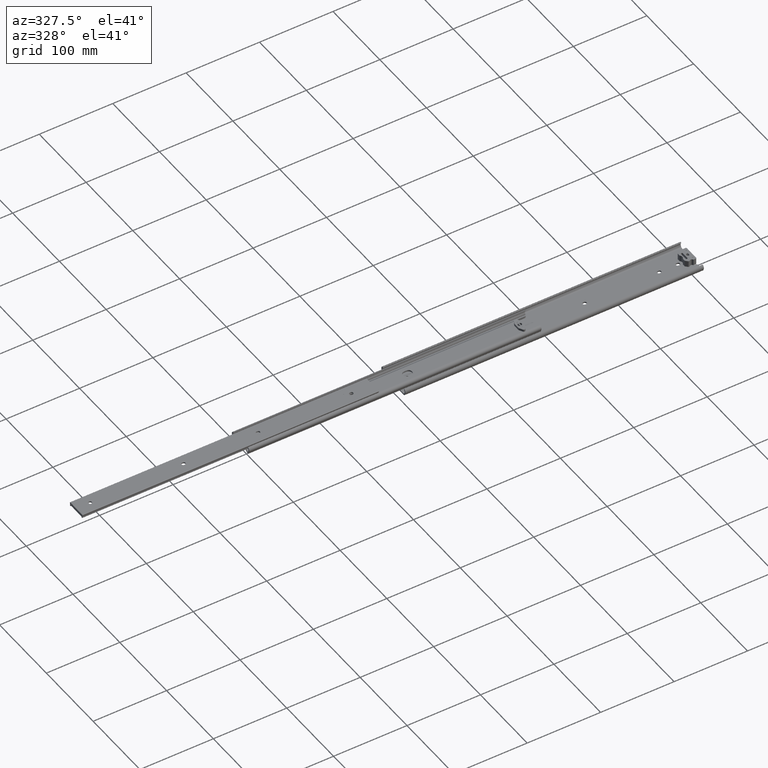
[diagram: clean part render]
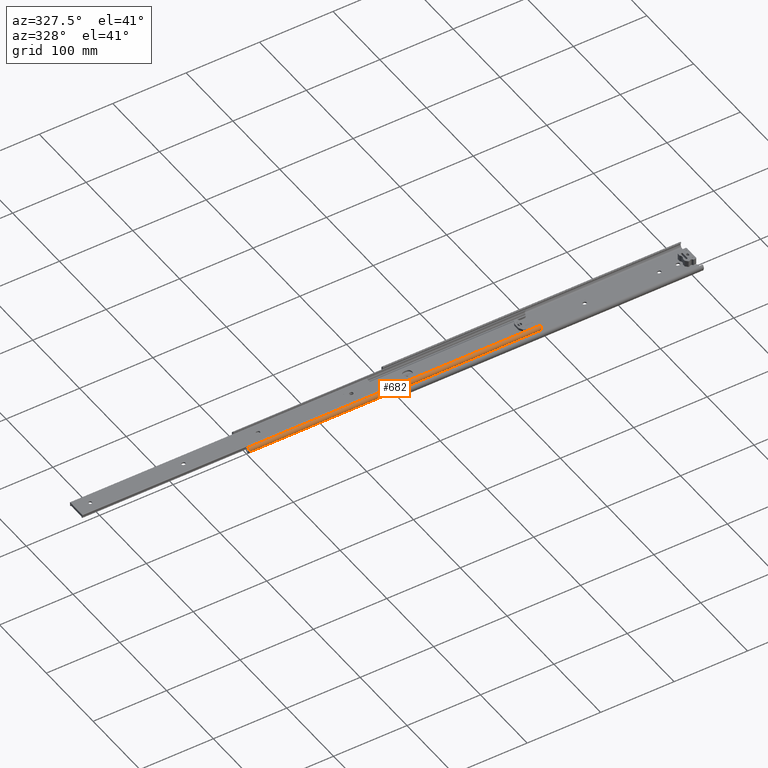
[diagram: same view with one face highlighted and labeled with its STEP entity id]
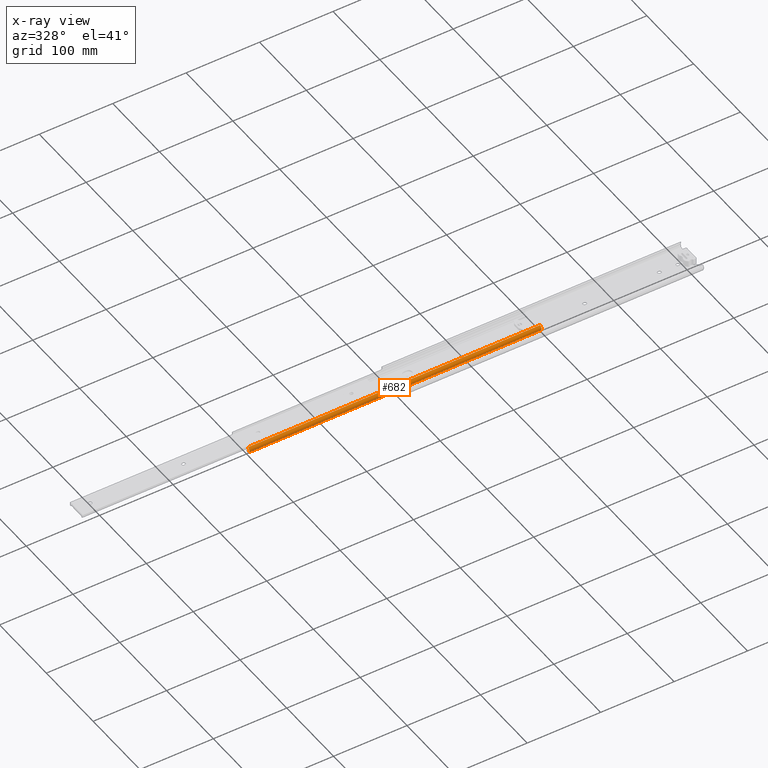
[diagram: x-ray of the same camera — body ghosted, the highlighted face saturated]
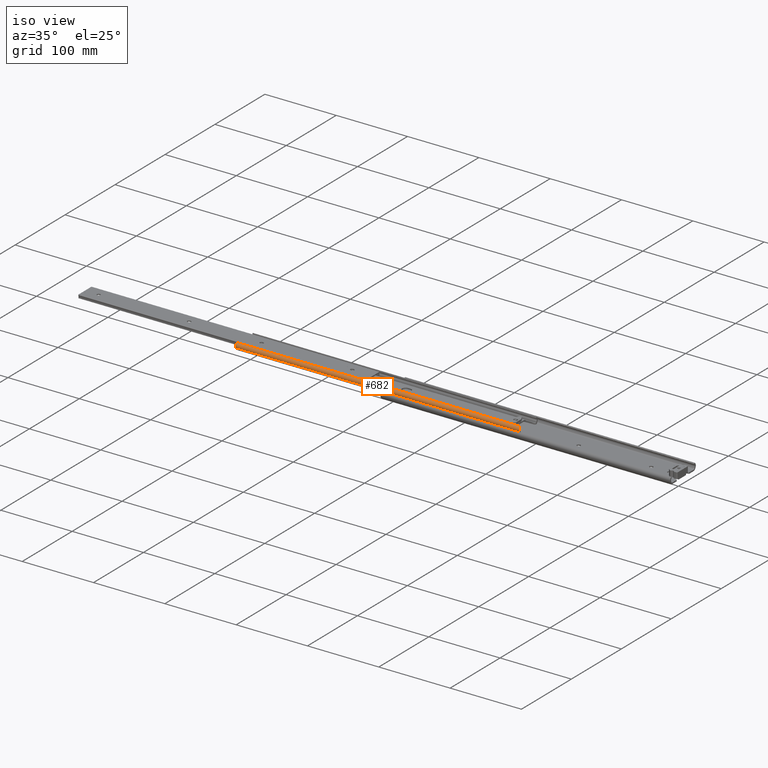
[diagram: same view with one face highlighted and labeled with its STEP entity id]
A machine part, auxiliary view. The second image highlights one B-rep face of the part: STEP entity #682.
The next image is the same camera in x-ray: the body ghosted, the highlighted face saturated — about 0% of this face is hidden behind the body in this view.
A second angle (iso view) of the same face is appended — the face is thin or edge-on in the first view.
In plain terms, the highlighted cylindrical surface (edge-blend (fillet) strip) has radius 3.75 mm, axis along (-1, -0, -0).
Its self-contained STEP definition (entity closure, byte-faithful):
#42 = ORIENTED_EDGE ( 'NONE', *, *, #7072, .T. ) ;
#84 = ORIENTED_EDGE ( 'NONE', *, *, #6282, .F. ) ;
#163 = VERTEX_POINT ( 'NONE', #4322 ) ;
#355 = DIRECTION ( 'NONE',  ( -1.000000000000000000, -0.0000000000000000000, -0.0000000000000000000 ) ) ;
#517 = CARTESIAN_POINT ( 'NONE',  ( 0.0000000000000000000, -15.00054234065929900, 3.199999999999998800 ) ) ;
#682 = ADVANCED_FACE ( 'NONE', ( #7592 ), #7399, .T. ) ;
#890 = LINE ( 'NONE', #3781, #5510 ) ;
#1130 = DIRECTION ( 'NONE',  ( 0.0000000000000000000, 0.0000000000000000000, 1.000000000000000000 ) ) ;
#1687 = AXIS2_PLACEMENT_3D ( 'NONE', #517, #4726, #1130 ) ;
#1732 = DIRECTION ( 'NONE',  ( -1.000000000000000000, -0.0000000000000000000, -0.0000000000000000000 ) ) ;
#1824 = LINE ( 'NONE', #4575, #2010 ) ;
#1864 = DIRECTION ( 'NONE',  ( -1.000000000000000000, -0.0000000000000000000, 0.0000000000000000000 ) ) ;
#1871 = EDGE_CURVE ( 'NONE', #3322, #7333, #890, .T. ) ;
#2010 = VECTOR ( 'NONE', #355, 1000.000000000000000 ) ;
#2373 = DIRECTION ( 'NONE',  ( 0.0000000000000000000, 0.0000000000000000000, 1.000000000000000000 ) ) ;
#2638 = CIRCLE ( 'NONE', #1687, 3.750005239290455300 ) ;
#2649 = CARTESIAN_POINT ( 'NONE',  ( 397.8999999999999800, -18.12974695031985600, 1.133452684890813300 ) ) ;
#3107 = VERTEX_POINT ( 'NONE', #2649 ) ;
#3322 = VERTEX_POINT ( 'NONE', #4651 ) ;
#3781 = CARTESIAN_POINT ( 'NONE',  ( 397.8999999999999800, -15.67499133287136100, 6.888855900087450300 ) ) ;
#4322 = CARTESIAN_POINT ( 'NONE',  ( 0.0000000000000000000, -18.12974695031985600, 1.133452684890813300 ) ) ;
#4575 = CARTESIAN_POINT ( 'NONE',  ( 397.8999999999999800, -18.12974695031985600, 1.133452684890813300 ) ) ;
#4651 = CARTESIAN_POINT ( 'NONE',  ( 397.8999999999999800, -15.67499133287136100, 6.888855900087450300 ) ) ;
#4715 = DIRECTION ( 'NONE',  ( -1.000000000000000000, -0.0000000000000000000, -0.0000000000000000000 ) ) ;
#4726 = DIRECTION ( 'NONE',  ( -1.000000000000000000, -0.0000000000000000000, 0.0000000000000000000 ) ) ;
#4924 = AXIS2_PLACEMENT_3D ( 'NONE', #7794, #1732, #2373 ) ;
#5014 = EDGE_LOOP ( 'NONE', ( #7008, #84, #42, #7228 ) ) ;
#5476 = CARTESIAN_POINT ( 'NONE',  ( 397.8999999999999800, -15.00054234065929900, 3.199999999999998800 ) ) ;
#5510 = VECTOR ( 'NONE', #4715, 1000.000000000000000 ) ;
#6095 = DIRECTION ( 'NONE',  ( 0.0000000000000000000, 0.0000000000000000000, 1.000000000000000000 ) ) ;
#6158 = AXIS2_PLACEMENT_3D ( 'NONE', #5476, #1864, #6095 ) ;
#6282 = EDGE_CURVE ( 'NONE', #3107, #163, #1824, .T. ) ;
#6513 = CIRCLE ( 'NONE', #6158, 3.750005239290455300 ) ;
#6909 = CARTESIAN_POINT ( 'NONE',  ( 0.0000000000000000000, -15.67499133287136100, 6.888855900087450300 ) ) ;
#6964 = EDGE_CURVE ( 'NONE', #163, #7333, #2638, .T. ) ;
#7008 = ORIENTED_EDGE ( 'NONE', *, *, #6964, .F. ) ;
#7072 = EDGE_CURVE ( 'NONE', #3107, #3322, #6513, .T. ) ;
#7228 = ORIENTED_EDGE ( 'NONE', *, *, #1871, .T. ) ;
#7333 = VERTEX_POINT ( 'NONE', #6909 ) ;
#7399 = CYLINDRICAL_SURFACE ( 'NONE', #4924, 3.750005239290455300 ) ;
#7592 = FACE_OUTER_BOUND ( 'NONE', #5014, .T. ) ;
#7794 = CARTESIAN_POINT ( 'NONE',  ( 397.8999999999999800, -15.00054234065929900, 3.199999999999998800 ) ) ;